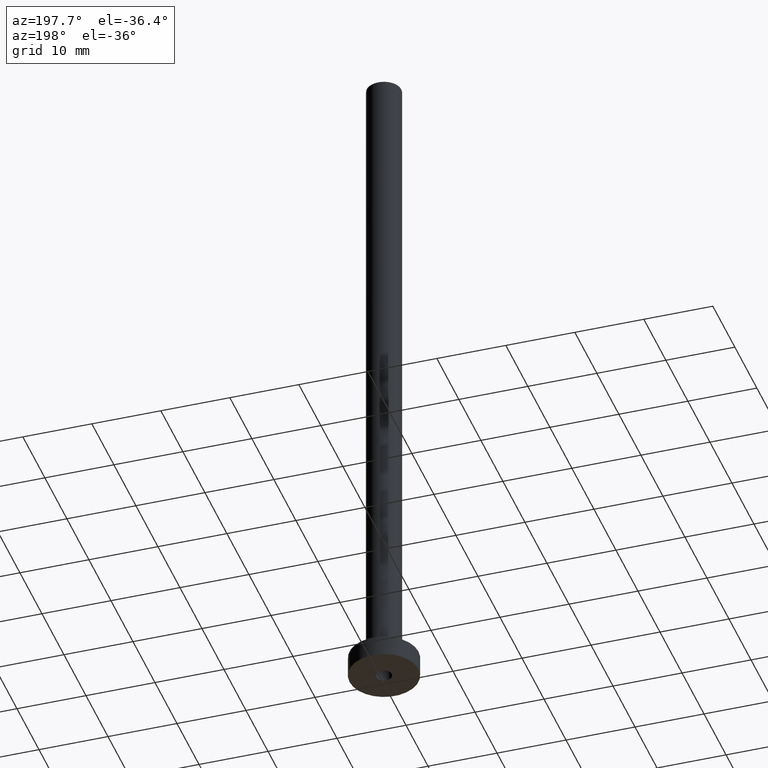
[diagram: clean part render]
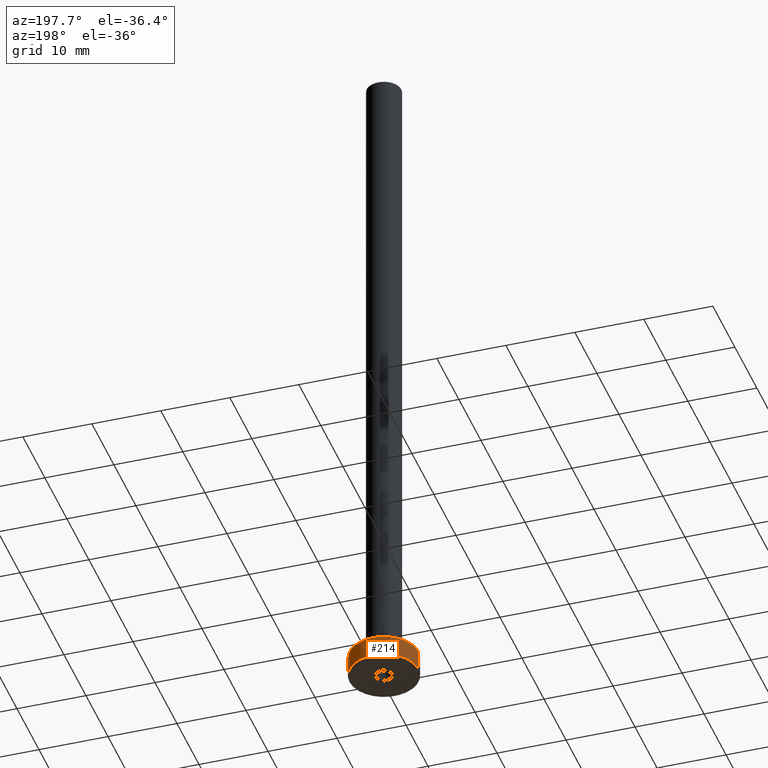
[diagram: same view with one face highlighted and labeled with its STEP entity id]
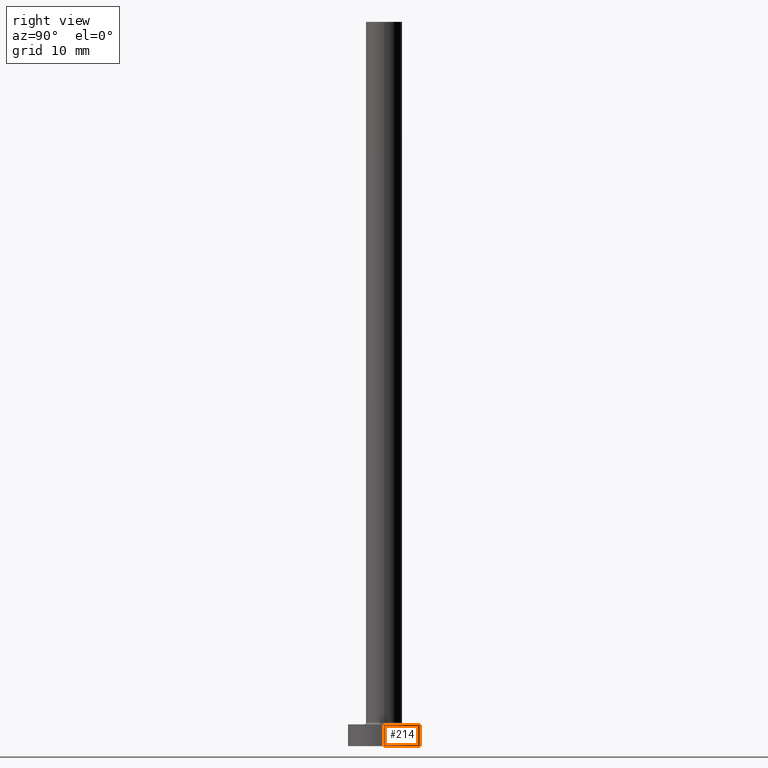
[diagram: same view with one face highlighted and labeled with its STEP entity id]
A machine part, auxiliary view. The second image highlights one B-rep face of the part: STEP entity #214.
A second angle (right view) of the same face is appended — the face is thin or edge-on in the first view.
In plain terms, the highlighted cylindrical surface (edge-blend (fillet) strip) has radius 5 mm, axis along (-0, -0, -1).
Its self-contained STEP definition (entity closure, byte-faithful):
#17 = CIRCLE ( 'NONE', #273, 5.000000000000000000 ) ;
#24 = CARTESIAN_POINT ( 'NONE',  ( 0.000000000000000000, 0.000000000000000000, 3.000000000000000000 ) ) ;
#34 = VERTEX_POINT ( 'NONE', #108 ) ;
#41 = EDGE_LOOP ( 'NONE', ( #248, #300, #391, #252 ) ) ;
#61 = CARTESIAN_POINT ( 'NONE',  ( -5.000000000000000000, 0.000000000000000000, 3.000000000000000000 ) ) ;
#88 = AXIS2_PLACEMENT_3D ( 'NONE', #299, #162, #303 ) ;
#100 = CARTESIAN_POINT ( 'NONE',  ( -5.000000000000000000, 0.000000000000000000, 3.000000000000000000 ) ) ;
#108 = CARTESIAN_POINT ( 'NONE',  ( 5.000000000000000000, 6.123233995736766282E-16, 3.000000000000000000 ) ) ;
#129 = EDGE_CURVE ( 'NONE', #34, #413, #147, .T. ) ;
#147 = LINE ( 'NONE', #189, #332 ) ;
#148 = AXIS2_PLACEMENT_3D ( 'NONE', #271, #417, #274 ) ;
#162 = DIRECTION ( 'NONE',  ( -0.000000000000000000, -0.000000000000000000, -1.000000000000000000 ) ) ;
#170 = VECTOR ( 'NONE', #237, 1000.000000000000000 ) ;
#189 = CARTESIAN_POINT ( 'NONE',  ( 5.000000000000000000, 6.123233995736766282E-16, 3.000000000000000000 ) ) ;
#200 = EDGE_CURVE ( 'NONE', #413, #211, #256, .T. ) ;
#211 = VERTEX_POINT ( 'NONE', #421 ) ;
#214 = ADVANCED_FACE ( 'NONE', ( #241 ), #233, .T. ) ;
#218 = VERTEX_POINT ( 'NONE', #61 ) ;
#233 = CYLINDRICAL_SURFACE ( 'NONE', #88, 5.000000000000000000 ) ;
#237 = DIRECTION ( 'NONE',  ( -0.000000000000000000, -0.000000000000000000, -1.000000000000000000 ) ) ;
#241 = FACE_OUTER_BOUND ( 'NONE', #41, .T. ) ;
#248 = ORIENTED_EDGE ( 'NONE', *, *, #338, .F. ) ;
#252 = ORIENTED_EDGE ( 'NONE', *, *, #306, .F. ) ;
#256 = CIRCLE ( 'NONE', #148, 5.000000000000000000 ) ;
#269 = DIRECTION ( 'NONE',  ( 1.000000000000000000, 0.000000000000000000, 0.000000000000000000 ) ) ;
#271 = CARTESIAN_POINT ( 'NONE',  ( 0.000000000000000000, 0.000000000000000000, 0.000000000000000000 ) ) ;
#273 = AXIS2_PLACEMENT_3D ( 'NONE', #24, #450, #269 ) ;
#274 = DIRECTION ( 'NONE',  ( 1.000000000000000000, 0.000000000000000000, 0.000000000000000000 ) ) ;
#285 = CARTESIAN_POINT ( 'NONE',  ( 5.000000000000000000, 6.123233995736766282E-16, 0.000000000000000000 ) ) ;
#299 = CARTESIAN_POINT ( 'NONE',  ( 0.000000000000000000, 0.000000000000000000, 3.000000000000000000 ) ) ;
#300 = ORIENTED_EDGE ( 'NONE', *, *, #129, .T. ) ;
#303 = DIRECTION ( 'NONE',  ( -1.000000000000000000, 0.000000000000000000, 0.000000000000000000 ) ) ;
#306 = EDGE_CURVE ( 'NONE', #218, #211, #457, .T. ) ;
#332 = VECTOR ( 'NONE', #404, 1000.000000000000000 ) ;
#338 = EDGE_CURVE ( 'NONE', #34, #218, #17, .T. ) ;
#391 = ORIENTED_EDGE ( 'NONE', *, *, #200, .T. ) ;
#404 = DIRECTION ( 'NONE',  ( -0.000000000000000000, -0.000000000000000000, -1.000000000000000000 ) ) ;
#413 = VERTEX_POINT ( 'NONE', #285 ) ;
#417 = DIRECTION ( 'NONE',  ( 0.000000000000000000, 0.000000000000000000, 1.000000000000000000 ) ) ;
#421 = CARTESIAN_POINT ( 'NONE',  ( -5.000000000000000000, 0.000000000000000000, 0.000000000000000000 ) ) ;
#450 = DIRECTION ( 'NONE',  ( 0.000000000000000000, 0.000000000000000000, 1.000000000000000000 ) ) ;
#457 = LINE ( 'NONE', #100, #170 ) ;